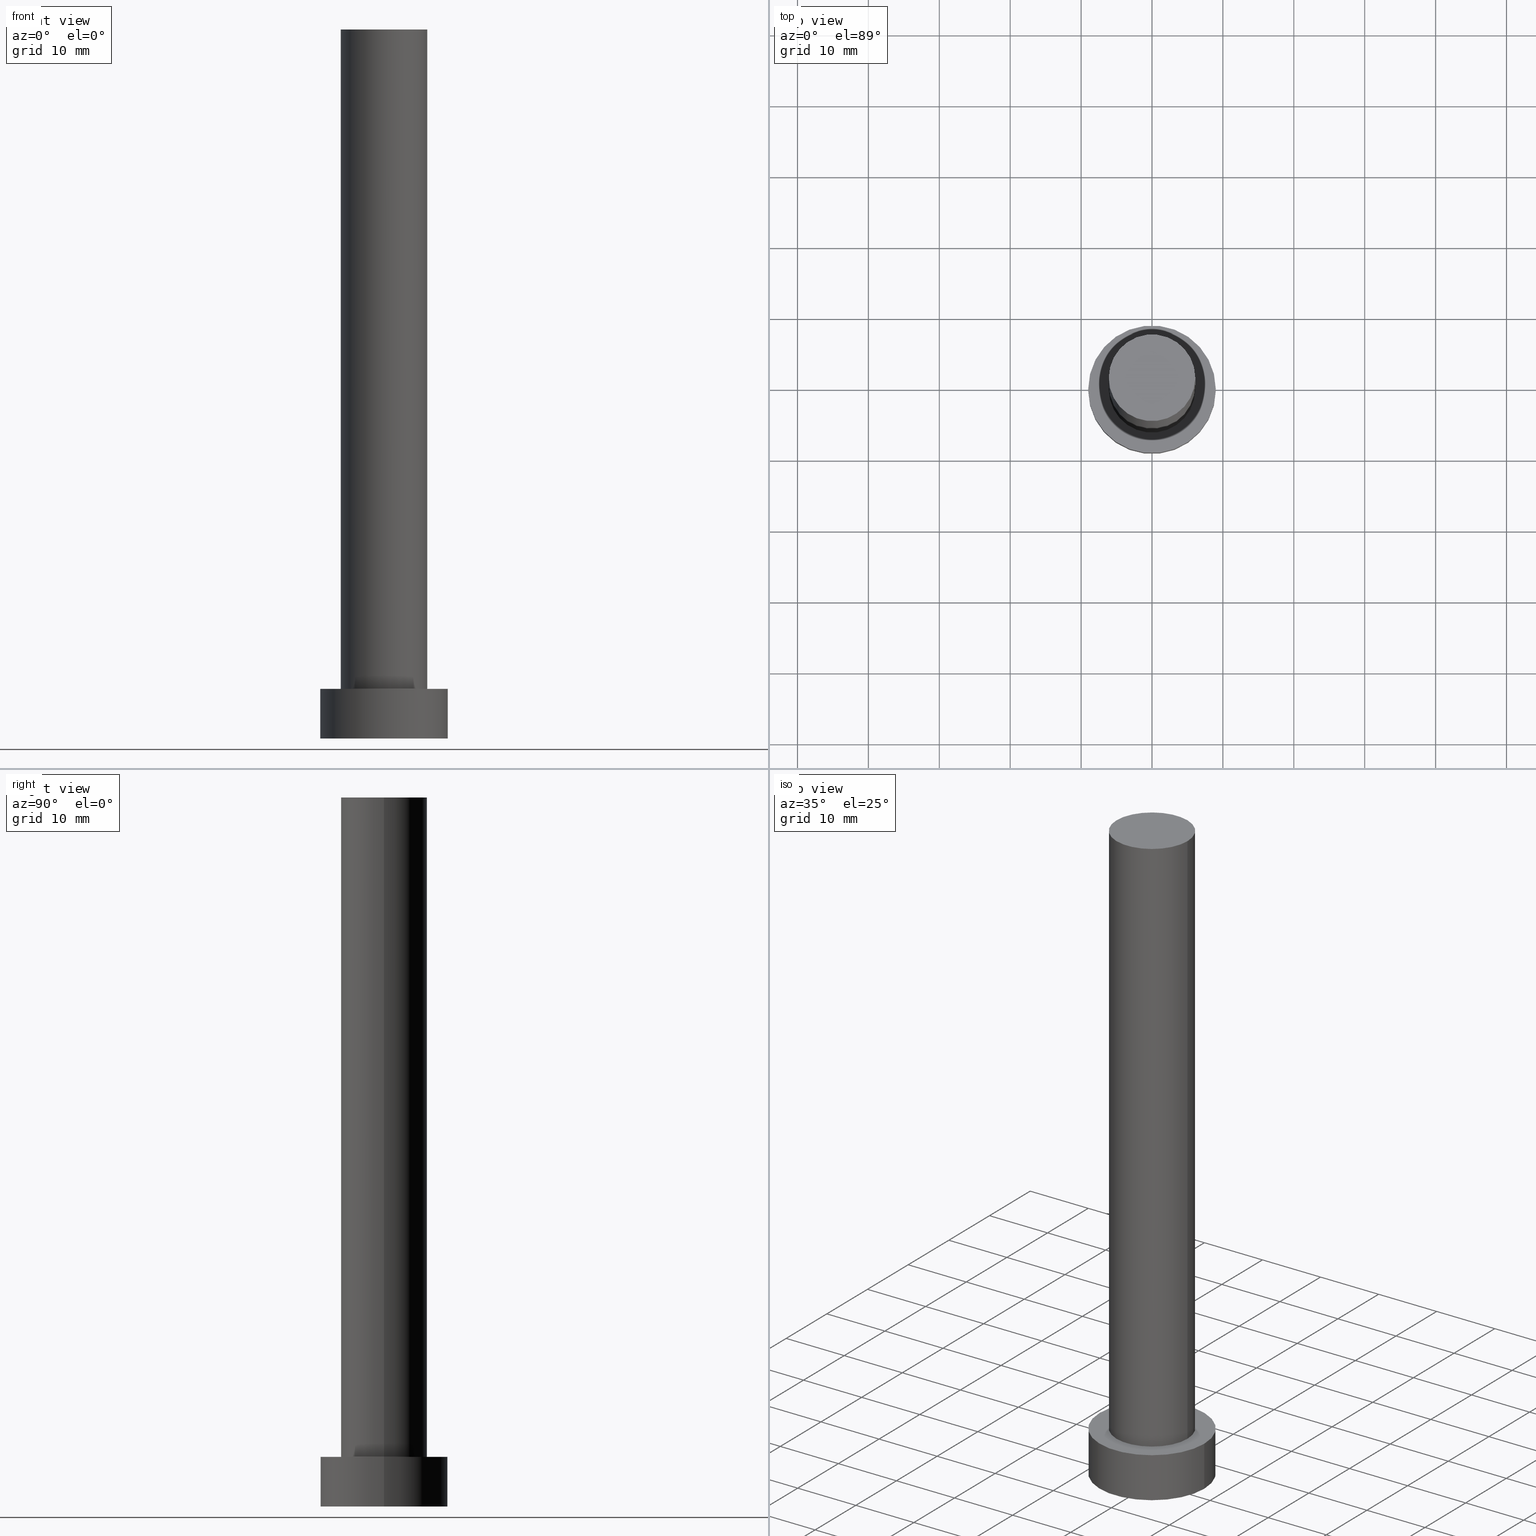
[diagram: canonical four-view strip — front | top / right | iso, engineering-drawing reading convention]
A machine part, canonical four-view strip (front | top / right | iso — engineering-drawing reading convention). The complete STEP part file that produces these views, byte-faithful:
ISO-10303-21;
HEADER;
FILE_DESCRIPTION (( 'STEP AP203' ),
    '1' );
FILE_NAME ('6889.STEP',
    '2023-02-13T11:30:09',
    ( '' ),
    ( '' ),
    'SwSTEP 2.0',
    'SolidWorks 2019',
    '' );
FILE_SCHEMA (( 'CONFIG_CONTROL_DESIGN' ));
ENDSEC;

DATA;
#1 = DIRECTION ( 'NONE',  ( 0.000000000000000000, 0.000000000000000000, 1.000000000000000000 ) ) ;
#2 = VERTEX_POINT ( 'NONE', #101 ) ;
#3 = COORDINATED_UNIVERSAL_TIME_OFFSET ( 1, 0, .AHEAD. ) ;
#4 = ORIENTED_EDGE ( 'NONE', *, *, #75, .F. ) ;
#5 = EDGE_CURVE ( 'NONE', #38, #2, #171, .T. ) ;
#6 = UNCERTAINTY_MEASURE_WITH_UNIT (LENGTH_MEASURE( 1.000000000000000082E-05 ), #106, 'distance_accuracy_value', 'NONE');
#7 = AXIS2_PLACEMENT_3D ( 'NONE', #211, #99, #165 ) ;
#8 = DIRECTION ( 'NONE',  ( 1.000000000000000000, 0.000000000000000000, 0.000000000000000000 ) ) ;
#9 = DIRECTION ( 'NONE',  ( 0.000000000000000000, 0.000000000000000000, 1.000000000000000000 ) ) ;
#10 = PERSON_AND_ORGANIZATION_ROLE ( 'design_owner' ) ;
#11 = APPROVAL_STATUS ( 'not_yet_approved' ) ;
#12 = CARTESIAN_POINT ( 'NONE',  ( 0.000000000000000000, 0.000000000000000000, 100.0000000000000000 ) ) ;
#13 = FACE_OUTER_BOUND ( 'NONE', #77, .T. ) ;
#14 = CARTESIAN_POINT ( 'NONE',  ( 0.000000000000000000, 0.000000000000000000, 100.0000000000000000 ) ) ;
#15 = CALENDAR_DATE ( 2023, 13, 2 ) ;
#16 = DIRECTION ( 'NONE',  ( 1.000000000000000000, 0.000000000000000000, 0.000000000000000000 ) ) ;
#17 = APPROVAL_STATUS ( 'not_yet_approved' ) ;
#18 = PRODUCT_DEFINITION ( 'NEZN�M�', '', #69, #179 ) ;
#19 = FACE_OUTER_BOUND ( 'NONE', #20, .T. ) ;
#20 = EDGE_LOOP ( 'NONE', ( #234, #4, #21, #236 ) ) ;
#21 = ORIENTED_EDGE ( 'NONE', *, *, #5, .T. ) ;
#22 = ORIENTED_EDGE ( 'NONE', *, *, #220, .F. ) ;
#23 = EDGE_LOOP ( 'NONE', ( #116, #187, #194, #204 ) ) ;
#24 = CARTESIAN_POINT ( 'NONE',  ( 0.000000000000000000, 0.000000000000000000, 7.000000000000000000 ) ) ;
#25 = DIRECTION ( 'NONE',  ( -0.000000000000000000, -0.000000000000000000, -1.000000000000000000 ) ) ;
#26 = ADVANCED_FACE ( 'NONE', ( #146 ), #213, .T. ) ;
#27 = AXIS2_PLACEMENT_3D ( 'NONE', #142, #233, #208 ) ;
#28 = CC_DESIGN_DATE_AND_TIME_ASSIGNMENT ( #136, #94, ( #18 ) ) ;
#29 = PRODUCT ( '6889', '6889', '', ( #113 ) ) ;
#30 = DIRECTION ( 'NONE',  ( -0.000000000000000000, -0.000000000000000000, -1.000000000000000000 ) ) ;
#31 = ADVANCED_FACE ( 'NONE', ( #19 ), #39, .T. ) ;
#32 = PERSON_AND_ORGANIZATION ( #223, #216 ) ;
#33 = APPLICATION_PROTOCOL_DEFINITION ( 'international standard', 'config_control_design', 1994, #226 ) ;
#34 = COORDINATED_UNIVERSAL_TIME_OFFSET ( 1, 0, .AHEAD. ) ;
#35 = VECTOR ( 'NONE', #182, 1000.000000000000000 ) ;
#36 = EDGE_LOOP ( 'NONE', ( #55, #193 ) ) ;
#37 = CARTESIAN_POINT ( 'NONE',  ( 0.000000000000000000, 0.000000000000000000, 0.000000000000000000 ) ) ;
#38 = VERTEX_POINT ( 'NONE', #191 ) ;
#39 = CYLINDRICAL_SURFACE ( 'NONE', #27, 9.000000000000000000 ) ;
#40 = EDGE_CURVE ( 'NONE', #158, #2, #192, .T. ) ;
#41 = DATE_AND_TIME ( #60, #147 ) ;
#42 = ORIENTED_EDGE ( 'NONE', *, *, #205, .T. ) ;
#43 = CARTESIAN_POINT ( 'NONE',  ( 0.000000000000000000, 0.000000000000000000, 7.000000000000000000 ) ) ;
#44 = CARTESIAN_POINT ( 'NONE',  ( -6.099999999999999645, 0.000000000000000000, 100.0000000000000000 ) ) ;
#45 = CIRCLE ( 'NONE', #81, 6.099999999999999645 ) ;
#46 = APPROVAL_PERSON_ORGANIZATION ( #201, #188, #243 ) ;
#47 = CYLINDRICAL_SURFACE ( 'NONE', #173, 6.099999999999999645 ) ;
#48 = CARTESIAN_POINT ( 'NONE',  ( 0.000000000000000000, 0.000000000000000000, 100.0000000000000000 ) ) ;
#49 = DIRECTION ( 'NONE',  ( 0.000000000000000000, 0.000000000000000000, 1.000000000000000000 ) ) ;
#50 = APPROVAL_STATUS ( 'not_yet_approved' ) ;
#51 = CARTESIAN_POINT ( 'NONE',  ( 9.000000000000000000, 1.102182119232617714E-15, 0.000000000000000000 ) ) ;
#52 = LOCAL_TIME ( 12, 30, 9.000000000000000000, #227 ) ;
#53 = DATE_AND_TIME ( #120, #52 ) ;
#54 = CARTESIAN_POINT ( 'NONE',  ( 6.099999999999999645, 7.470345474798852320E-16, 100.0000000000000000 ) ) ;
#55 = ORIENTED_EDGE ( 'NONE', *, *, #75, .T. ) ;
#56 = LOCAL_TIME ( 12, 30, 9.000000000000000000, #133 ) ;
#57 = EDGE_LOOP ( 'NONE', ( #207, #232 ) ) ;
#58 = EDGE_CURVE ( 'NONE', #2, #158, #186, .T. ) ;
#59 = VERTEX_POINT ( 'NONE', #123 ) ;
#60 = CALENDAR_DATE ( 2023, 13, 2 ) ;
#61 = EDGE_LOOP ( 'NONE', ( #212, #100 ) ) ;
#62 = DIRECTION ( 'NONE',  ( -0.000000000000000000, -0.000000000000000000, -1.000000000000000000 ) ) ;
#63 = CARTESIAN_POINT ( 'NONE',  ( 0.000000000000000000, 0.000000000000000000, 7.000000000000000000 ) ) ;
#64 = DIRECTION ( 'NONE',  ( -0.000000000000000000, -0.000000000000000000, -1.000000000000000000 ) ) ;
#65 = APPROVAL ( #50, 'NEUR�EN�' ) ;
#66 =( NAMED_UNIT ( * ) SI_UNIT ( $, .STERADIAN. ) SOLID_ANGLE_UNIT ( ) );
#67 = DIRECTION ( 'NONE',  ( 0.000000000000000000, 0.000000000000000000, 1.000000000000000000 ) ) ;
#68 = PERSON_AND_ORGANIZATION ( #223, #216 ) ;
#69 = PRODUCT_DEFINITION_FORMATION_WITH_SPECIFIED_SOURCE ( 'LIBOVOLN�', '', #29, .NOT_KNOWN. ) ;
#70 = ADVANCED_FACE ( 'NONE', ( #229, #73 ), #168, .T. ) ;
#71 = PERSON_AND_ORGANIZATION ( #223, #216 ) ;
#72 = PLANE ( 'NONE',  #117 ) ;
#73 = FACE_OUTER_BOUND ( 'NONE', #36, .T. ) ;
#74 = ORIENTED_EDGE ( 'NONE', *, *, #238, .F. ) ;
#75 = EDGE_CURVE ( 'NONE', #38, #154, #206, .T. ) ;
#76 = ORIENTED_EDGE ( 'NONE', *, *, #198, .T. ) ;
#77 = EDGE_LOOP ( 'NONE', ( #22, #172, #79, #42 ) ) ;
#78 = CARTESIAN_POINT ( 'NONE',  ( 6.099999999999999645, 7.470345474798852320E-16, 100.0000000000000000 ) ) ;
#79 = ORIENTED_EDGE ( 'NONE', *, *, #238, .T. ) ;
#80 = APPROVAL_DATE_TIME ( #41, #91 ) ;
#81 = AXIS2_PLACEMENT_3D ( 'NONE', #160, #88, #8 ) ;
#82 = AXIS2_PLACEMENT_3D ( 'NONE', #24, #1, #235 ) ;
#83 = AXIS2_PLACEMENT_3D ( 'NONE', #63, #185, #16 ) ;
#84 = CYLINDRICAL_SURFACE ( 'NONE', #148, 6.099999999999999645 ) ;
#85 = APPROVAL_ROLE ( '' ) ;
#86 = DIRECTION ( 'NONE',  ( 0.000000000000000000, 0.000000000000000000, 1.000000000000000000 ) ) ;
#87 = ADVANCED_FACE ( 'NONE', ( #95 ), #72, .F. ) ;
#88 = DIRECTION ( 'NONE',  ( 0.000000000000000000, 0.000000000000000000, 1.000000000000000000 ) ) ;
#89 = PERSON_AND_ORGANIZATION ( #223, #216 ) ;
#90 = CARTESIAN_POINT ( 'NONE',  ( 0.000000000000000000, 0.000000000000000000, 0.000000000000000000 ) ) ;
#91 = APPROVAL ( #17, 'NEUR�EN�' ) ;
#92 = DIRECTION ( 'NONE',  ( -0.000000000000000000, -0.000000000000000000, -1.000000000000000000 ) ) ;
#93 = DIRECTION ( 'NONE',  ( 1.000000000000000000, 0.000000000000000000, 0.000000000000000000 ) ) ;
#94 = DATE_TIME_ROLE ( 'creation_date' ) ;
#95 = FACE_OUTER_BOUND ( 'NONE', #57, .T. ) ;
#96 = VECTOR ( 'NONE', #64, 1000.000000000000000 ) ;
#97 = AXIS2_PLACEMENT_3D ( 'NONE', #37, #250, #167 ) ;
#98 = VERTEX_POINT ( 'NONE', #44 ) ;
#99 = DIRECTION ( 'NONE',  ( 0.000000000000000000, 0.000000000000000000, 1.000000000000000000 ) ) ;
#100 = ORIENTED_EDGE ( 'NONE', *, *, #105, .F. ) ;
#101 = CARTESIAN_POINT ( 'NONE',  ( -9.000000000000000000, 0.000000000000000000, 0.000000000000000000 ) ) ;
#102 = DATE_TIME_ROLE ( 'classification_date' ) ;
#103 =( GEOMETRIC_REPRESENTATION_CONTEXT ( 3 ) GLOBAL_UNCERTAINTY_ASSIGNED_CONTEXT ( ( #6 ) ) GLOBAL_UNIT_ASSIGNED_CONTEXT ( ( #106, #210, #66 ) ) REPRESENTATION_CONTEXT ( 'NONE', 'WORKASPACE' ) );
#104 = AXIS2_PLACEMENT_3D ( 'NONE', #132, #108, #176 ) ;
#105 = EDGE_CURVE ( 'NONE', #245, #59, #127, .T. ) ;
#106 =( LENGTH_UNIT ( ) NAMED_UNIT ( * ) SI_UNIT ( .MILLI., .METRE. ) );
#107 = SECURITY_CLASSIFICATION ( '', '', #115 ) ;
#108 = DIRECTION ( 'NONE',  ( 0.000000000000000000, 0.000000000000000000, 1.000000000000000000 ) ) ;
#109 = DIRECTION ( 'NONE',  ( 1.000000000000000000, 0.000000000000000000, 0.000000000000000000 ) ) ;
#110 = CARTESIAN_POINT ( 'NONE',  ( 9.000000000000000000, 1.102182119232617714E-15, 7.000000000000000000 ) ) ;
#111 = VECTOR ( 'NONE', #149, 1000.000000000000000 ) ;
#112 = CC_DESIGN_SECURITY_CLASSIFICATION ( #107, ( #69 ) ) ;
#113 = MECHANICAL_CONTEXT ( 'NONE', #226, 'mechanical' ) ;
#114 = PRODUCT_DEFINITION_SHAPE ( 'NONE', 'NONE',  #18 ) ;
#115 = SECURITY_CLASSIFICATION_LEVEL ( 'unclassified' ) ;
#116 = ORIENTED_EDGE ( 'NONE', *, *, #162, .F. ) ;
#117 = AXIS2_PLACEMENT_3D ( 'NONE', #140, #202, #153 ) ;
#118 = COORDINATED_UNIVERSAL_TIME_OFFSET ( 1, 0, .AHEAD. ) ;
#119 = CARTESIAN_POINT ( 'NONE',  ( -6.099999999999999645, 0.000000000000000000, 100.0000000000000000 ) ) ;
#120 = CALENDAR_DATE ( 2023, 13, 2 ) ;
#121 = DIRECTION ( 'NONE',  ( -1.000000000000000000, 0.000000000000000000, 0.000000000000000000 ) ) ;
#122 = PERSON_AND_ORGANIZATION ( #223, #216 ) ;
#123 = CARTESIAN_POINT ( 'NONE',  ( -6.099999999999999645, 0.000000000000000000, 7.000000000000000000 ) ) ;
#124 = CC_DESIGN_APPROVAL ( #188, ( #18 ) ) ;
#125 = EDGE_LOOP ( 'NONE', ( #76, #189 ) ) ;
#126 = EDGE_CURVE ( 'NONE', #253, #98, #242, .T. ) ;
#127 = CIRCLE ( 'NONE', #104, 6.099999999999999645 ) ;
#128 = ORIENTED_EDGE ( 'NONE', *, *, #105, .T. ) ;
#129 = CC_DESIGN_PERSON_AND_ORGANIZATION_ASSIGNMENT ( #68, #155, ( #107 ) ) ;
#130 = CIRCLE ( 'NONE', #215, 6.099999999999999645 ) ;
#131 = LOCAL_TIME ( 12, 30, 9.000000000000000000, #34 ) ;
#132 = CARTESIAN_POINT ( 'NONE',  ( 0.000000000000000000, 0.000000000000000000, 7.000000000000000000 ) ) ;
#133 = COORDINATED_UNIVERSAL_TIME_OFFSET ( 1, 0, .AHEAD. ) ;
#134 = CARTESIAN_POINT ( 'NONE',  ( 0.000000000000000000, 0.000000000000000000, 100.0000000000000000 ) ) ;
#135 = CC_DESIGN_APPROVAL ( #91, ( #107 ) ) ;
#136 = DATE_AND_TIME ( #15, #150 ) ;
#137 = LINE ( 'NONE', #119, #35 ) ;
#138 = CLOSED_SHELL ( 'NONE', ( #239, #26, #31, #70, #87, #151, #217 ) ) ;
#139 = PERSON_AND_ORGANIZATION_ROLE ( 'design_supplier' ) ;
#140 = CARTESIAN_POINT ( 'NONE',  ( 0.000000000000000000, 0.000000000000000000, 0.000000000000000000 ) ) ;
#141 = VECTOR ( 'NONE', #62, 1000.000000000000000 ) ;
#142 = CARTESIAN_POINT ( 'NONE',  ( 0.000000000000000000, 0.000000000000000000, 7.000000000000000000 ) ) ;
#143 = AXIS2_PLACEMENT_3D ( 'NONE', #134, #9, #240 ) ;
#144 = CC_DESIGN_PERSON_AND_ORGANIZATION_ASSIGNMENT ( #71, #247, ( #69 ) ) ;
#145 = ORIENTED_EDGE ( 'NONE', *, *, #126, .F. ) ;
#146 = FACE_OUTER_BOUND ( 'NONE', #23, .T. ) ;
#147 = LOCAL_TIME ( 12, 30, 9.000000000000000000, #3 ) ;
#148 = AXIS2_PLACEMENT_3D ( 'NONE', #180, #30, #224 ) ;
#149 = DIRECTION ( 'NONE',  ( -0.000000000000000000, -0.000000000000000000, -1.000000000000000000 ) ) ;
#150 = LOCAL_TIME ( 12, 30, 9.000000000000000000, #118 ) ;
#151 = ADVANCED_FACE ( 'NONE', ( #13 ), #84, .T. ) ;
#152 = APPROVAL_DATE_TIME ( #53, #188 ) ;
#153 = DIRECTION ( 'NONE',  ( 1.000000000000000000, 0.000000000000000000, -0.000000000000000000 ) ) ;
#154 = VERTEX_POINT ( 'NONE', #110 ) ;
#155 = PERSON_AND_ORGANIZATION_ROLE ( 'classification_officer' ) ;
#156 = DIRECTION ( 'NONE',  ( 1.000000000000000000, 0.000000000000000000, 0.000000000000000000 ) ) ;
#157 = CC_DESIGN_APPROVAL ( #65, ( #69 ) ) ;
#158 = VERTEX_POINT ( 'NONE', #51 ) ;
#159 = CARTESIAN_POINT ( 'NONE',  ( 0.000000000000000000, 0.000000000000000000, 7.000000000000000000 ) ) ;
#160 = CARTESIAN_POINT ( 'NONE',  ( 0.000000000000000000, 0.000000000000000000, 7.000000000000000000 ) ) ;
#161 = AXIS2_PLACEMENT_3D ( 'NONE', #90, #49, #93 ) ;
#162 = EDGE_CURVE ( 'NONE', #154, #38, #231, .T. ) ;
#163 = DIRECTION ( 'NONE',  ( -1.000000000000000000, 0.000000000000000000, 0.000000000000000000 ) ) ;
#164 = CALENDAR_DATE ( 2023, 13, 2 ) ;
#165 = DIRECTION ( 'NONE',  ( 1.000000000000000000, 0.000000000000000000, 0.000000000000000000 ) ) ;
#166 = MANIFOLD_SOLID_BREP ( 'P�idat vysunut�m3', #138 ) ;
#167 = DIRECTION ( 'NONE',  ( 1.000000000000000000, 0.000000000000000000, 0.000000000000000000 ) ) ;
#168 = PLANE ( 'NONE',  #82 ) ;
#169 = PERSON_AND_ORGANIZATION ( #223, #216 ) ;
#170 = AXIS2_PLACEMENT_3D ( 'NONE', #43, #25, #121 ) ;
#171 = LINE ( 'NONE', #237, #96 ) ;
#172 = ORIENTED_EDGE ( 'NONE', *, *, #198, .F. ) ;
#173 = AXIS2_PLACEMENT_3D ( 'NONE', #14, #92, #163 ) ;
#174 = DIRECTION ( 'NONE',  ( 0.000000000000000000, 0.000000000000000000, 1.000000000000000000 ) ) ;
#175 = PERSON_AND_ORGANIZATION_ROLE ( 'creator' ) ;
#176 = DIRECTION ( 'NONE',  ( 1.000000000000000000, 0.000000000000000000, 0.000000000000000000 ) ) ;
#177 = AXIS2_PLACEMENT_3D ( 'NONE', #48, #67, #178 ) ;
#178 = DIRECTION ( 'NONE',  ( 1.000000000000000000, 0.000000000000000000, -0.000000000000000000 ) ) ;
#179 = DESIGN_CONTEXT ( 'detailed design', #241, 'design' ) ;
#180 = CARTESIAN_POINT ( 'NONE',  ( 0.000000000000000000, 0.000000000000000000, 100.0000000000000000 ) ) ;
#181 = CALENDAR_DATE ( 2023, 13, 2 ) ;
#182 = DIRECTION ( 'NONE',  ( -0.000000000000000000, -0.000000000000000000, -1.000000000000000000 ) ) ;
#183 = PRODUCT_RELATED_PRODUCT_CATEGORY ( 'detail', '', ( #29 ) ) ;
#184 = AXIS2_PLACEMENT_3D ( 'NONE', #159, #86, #156 ) ;
#185 = DIRECTION ( 'NONE',  ( 0.000000000000000000, 0.000000000000000000, 1.000000000000000000 ) ) ;
#186 = CIRCLE ( 'NONE', #7, 9.000000000000000000 ) ;
#187 = ORIENTED_EDGE ( 'NONE', *, *, #255, .T. ) ;
#188 = APPROVAL ( #11, 'NEUR�EN�' ) ;
#189 = ORIENTED_EDGE ( 'NONE', *, *, #126, .T. ) ;
#190 = DATE_AND_TIME ( #181, #131 ) ;
#191 = CARTESIAN_POINT ( 'NONE',  ( -9.000000000000000000, 0.000000000000000000, 7.000000000000000000 ) ) ;
#192 = CIRCLE ( 'NONE', #97, 9.000000000000000000 ) ;
#193 = ORIENTED_EDGE ( 'NONE', *, *, #162, .T. ) ;
#194 = ORIENTED_EDGE ( 'NONE', *, *, #40, .T. ) ;
#195 = SHAPE_DEFINITION_REPRESENTATION ( #114, #199 ) ;
#196 = CC_DESIGN_PERSON_AND_ORGANIZATION_ASSIGNMENT ( #32, #139, ( #69 ) ) ;
#197 = LINE ( 'NONE', #214, #141 ) ;
#198 = EDGE_CURVE ( 'NONE', #98, #253, #130, .T. ) ;
#199 = ADVANCED_BREP_SHAPE_REPRESENTATION ( '6889', ( #166, #161 ), #103 ) ;
#200 = DATE_AND_TIME ( #164, #56 ) ;
#201 = PERSON_AND_ORGANIZATION ( #223, #216 ) ;
#202 = DIRECTION ( 'NONE',  ( 0.000000000000000000, 0.000000000000000000, 1.000000000000000000 ) ) ;
#203 = CC_DESIGN_DATE_AND_TIME_ASSIGNMENT ( #190, #102, ( #107 ) ) ;
#204 = ORIENTED_EDGE ( 'NONE', *, *, #5, .F. ) ;
#205 = EDGE_CURVE ( 'NONE', #59, #245, #45, .T. ) ;
#206 = CIRCLE ( 'NONE', #83, 9.000000000000000000 ) ;
#207 = ORIENTED_EDGE ( 'NONE', *, *, #58, .F. ) ;
#208 = DIRECTION ( 'NONE',  ( -1.000000000000000000, 0.000000000000000000, 0.000000000000000000 ) ) ;
#209 = ORIENTED_EDGE ( 'NONE', *, *, #220, .T. ) ;
#210 =( NAMED_UNIT ( * ) PLANE_ANGLE_UNIT ( ) SI_UNIT ( $, .RADIAN. ) );
#211 = CARTESIAN_POINT ( 'NONE',  ( 0.000000000000000000, 0.000000000000000000, 0.000000000000000000 ) ) ;
#212 = ORIENTED_EDGE ( 'NONE', *, *, #205, .F. ) ;
#213 = CYLINDRICAL_SURFACE ( 'NONE', #170, 9.000000000000000000 ) ;
#214 = CARTESIAN_POINT ( 'NONE',  ( 9.000000000000000000, 1.102182119232617714E-15, 7.000000000000000000 ) ) ;
#215 = AXIS2_PLACEMENT_3D ( 'NONE', #12, #174, #109 ) ;
#216 = ORGANIZATION ( 'NEUR�EN�', 'NEUR�EN�', '' ) ;
#217 = ADVANCED_FACE ( 'NONE', ( #221 ), #225, .T. ) ;
#218 = APPROVAL_PERSON_ORGANIZATION ( #169, #91, #254 ) ;
#219 = FACE_OUTER_BOUND ( 'NONE', #251, .T. ) ;
#220 = EDGE_CURVE ( 'NONE', #253, #245, #244, .T. ) ;
#221 = FACE_OUTER_BOUND ( 'NONE', #125, .T. ) ;
#222 = PERSON_AND_ORGANIZATION ( #223, #216 ) ;
#223 = PERSON ( 'NEUR�EN�', 'NEUR�EN�', 'NEUR�EN�', ('NEUR�EN�'), ('NEUR�EN�'), ('NEUR�EN�') ) ;
#224 = DIRECTION ( 'NONE',  ( -1.000000000000000000, 0.000000000000000000, 0.000000000000000000 ) ) ;
#225 = PLANE ( 'NONE',  #177 ) ;
#226 = APPLICATION_CONTEXT ( 'configuration controlled 3d designs of mechanical parts and assemblies' ) ;
#227 = COORDINATED_UNIVERSAL_TIME_OFFSET ( 1, 0, .AHEAD. ) ;
#228 = APPLICATION_PROTOCOL_DEFINITION ( 'international standard', 'config_control_design', 1994, #241 ) ;
#229 = FACE_BOUND ( 'NONE', #61, .T. ) ;
#230 = CC_DESIGN_PERSON_AND_ORGANIZATION_ASSIGNMENT ( #122, #10, ( #29 ) ) ;
#231 = CIRCLE ( 'NONE', #184, 9.000000000000000000 ) ;
#232 = ORIENTED_EDGE ( 'NONE', *, *, #40, .F. ) ;
#233 = DIRECTION ( 'NONE',  ( -0.000000000000000000, -0.000000000000000000, -1.000000000000000000 ) ) ;
#234 = ORIENTED_EDGE ( 'NONE', *, *, #255, .F. ) ;
#235 = DIRECTION ( 'NONE',  ( 1.000000000000000000, 0.000000000000000000, -0.000000000000000000 ) ) ;
#236 = ORIENTED_EDGE ( 'NONE', *, *, #58, .T. ) ;
#237 = CARTESIAN_POINT ( 'NONE',  ( -9.000000000000000000, 0.000000000000000000, 7.000000000000000000 ) ) ;
#238 = EDGE_CURVE ( 'NONE', #98, #59, #137, .T. ) ;
#239 = ADVANCED_FACE ( 'NONE', ( #219 ), #47, .T. ) ;
#240 = DIRECTION ( 'NONE',  ( 1.000000000000000000, 0.000000000000000000, 0.000000000000000000 ) ) ;
#241 = APPLICATION_CONTEXT ( 'configuration controlled 3d designs of mechanical parts and assemblies' ) ;
#242 = CIRCLE ( 'NONE', #143, 6.099999999999999645 ) ;
#243 = APPROVAL_ROLE ( '' ) ;
#244 = LINE ( 'NONE', #54, #111 ) ;
#245 = VERTEX_POINT ( 'NONE', #248 ) ;
#246 = CC_DESIGN_PERSON_AND_ORGANIZATION_ASSIGNMENT ( #222, #175, ( #18 ) ) ;
#247 = PERSON_AND_ORGANIZATION_ROLE ( 'creator' ) ;
#248 = CARTESIAN_POINT ( 'NONE',  ( 6.099999999999999645, 7.470345474798852320E-16, 7.000000000000000000 ) ) ;
#249 = APPROVAL_DATE_TIME ( #200, #65 ) ;
#250 = DIRECTION ( 'NONE',  ( 0.000000000000000000, 0.000000000000000000, 1.000000000000000000 ) ) ;
#251 = EDGE_LOOP ( 'NONE', ( #145, #209, #128, #74 ) ) ;
#252 = APPROVAL_PERSON_ORGANIZATION ( #89, #65, #85 ) ;
#253 = VERTEX_POINT ( 'NONE', #78 ) ;
#254 = APPROVAL_ROLE ( '' ) ;
#255 = EDGE_CURVE ( 'NONE', #154, #158, #197, .T. ) ;
ENDSEC;
END-ISO-10303-21;
